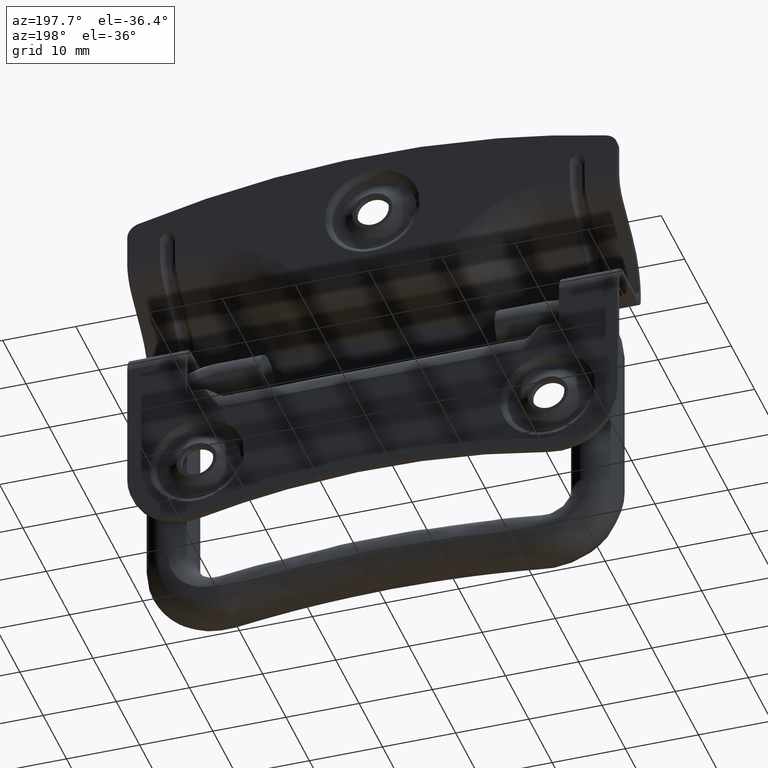
[diagram: clean part render]
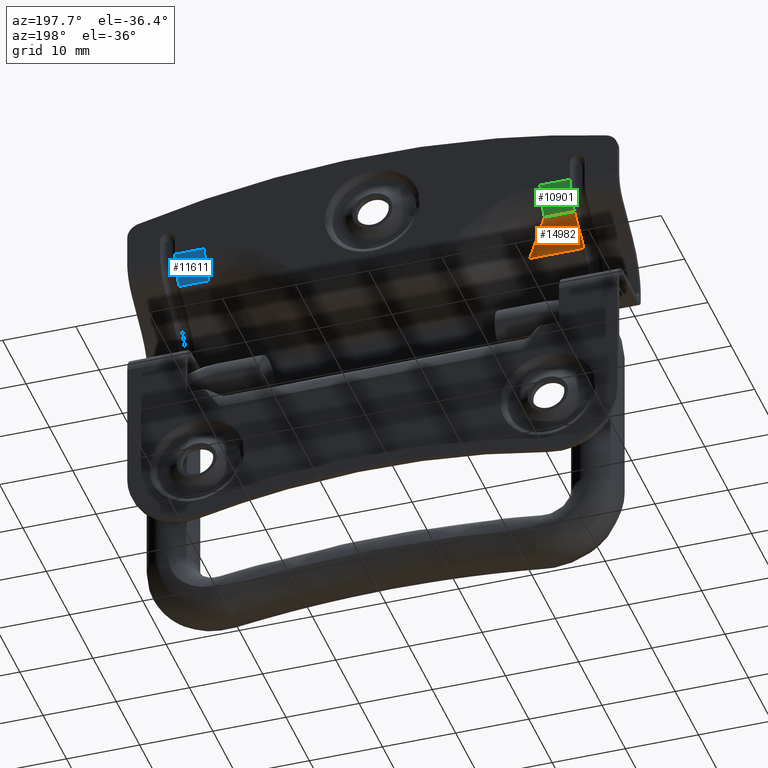
[diagram: same view with three faces highlighted in distinct colors, each labeled with its STEP entity id]
A machine part, auxiliary view with three faces highlighted in distinct colors.
Their STEP definitions:

[orange] entity #14982 — the highlighted face is a freeform B-spline surface patch.
#10843=CARTESIAN_POINT('',(-22.923475820353751,3.780000000000115,15.160000000000601));
#10844=VERTEX_POINT('',#10843);
#10858=CARTESIAN_POINT('',(-27.0,3.780000000000000,15.160000000000551));
#10859=VERTEX_POINT('',#10858);
#10860=CARTESIAN_POINT('',(-27.0,3.780000000000000,15.160000000000551));
#10861=CARTESIAN_POINT('',(-22.923475820353751,3.780000000000115,15.160000000000601));
#10862=QUASI_UNIFORM_CURVE('',1,(#10860,#10861),.UNSPECIFIED.,.F.,.U.);
#10863=EDGE_CURVE('',#10859,#10844,#10862,.T.);
#13907=CARTESIAN_POINT('',(-19.585318980685400,-0.299999770619768,12.100000172035459));
#13908=VERTEX_POINT('',#13907);
#14012=CARTESIAN_POINT('',(-22.923475820353751,3.780000000000115,15.160000000000601));
#14013=CARTESIAN_POINT('',(-19.585318980685400,-0.299999770619768,12.100000172035459));
#14014=QUASI_UNIFORM_CURVE('',1,(#14012,#14013),.UNSPECIFIED.,.F.,.U.);
#14015=EDGE_CURVE('',#10844,#13908,#14014,.T.);
#14821=CARTESIAN_POINT('',(-27.0,-0.299999770619768,12.100000172035459));
#14822=VERTEX_POINT('',#14821);
#14836=CARTESIAN_POINT('',(-19.585318980685400,-0.299999770619768,12.100000172035459));
#14837=CARTESIAN_POINT('',(-27.0,-0.299999770619768,12.100000172035459));
#14838=QUASI_UNIFORM_CURVE('',1,(#14836,#14837),.UNSPECIFIED.,.F.,.U.);
#14839=EDGE_CURVE('',#13908,#14822,#14838,.T.);
#14967=CARTESIAN_POINT('',(-27.370363276053229,3.983795889457883,15.312846917093941));
#14968=CARTESIAN_POINT('',(-27.370363276053229,-0.503795550643417,11.947153337017710));
#14969=CARTESIAN_POINT('',(-19.214956036094240,3.983795889457883,15.312846917093941));
#14970=CARTESIAN_POINT('',(-19.214956036094240,-0.503795550643417,11.947153337017710));
#14971=B_SPLINE_SURFACE_WITH_KNOTS('',1,1,((#14967,#14969),(#14968,#14970)),.UNSPECIFIED.,.F.,.F.,.U.,(2,2),(2,2),(0.0,5.609489300126778),(0.0,8.155407239958983),.UNSPECIFIED.);
#14972=CARTESIAN_POINT('',(-27.0,-0.299999770619768,12.100000172035459));
#14973=CARTESIAN_POINT('',(-27.0,3.780000000000000,15.160000000000551));
#14974=QUASI_UNIFORM_CURVE('',1,(#14972,#14973),.UNSPECIFIED.,.F.,.U.);
#14975=EDGE_CURVE('',#14822,#10859,#14974,.T.);
#14976=ORIENTED_EDGE('',*,*,#14975,.T.);
#14977=ORIENTED_EDGE('',*,*,#10863,.T.);
#14978=ORIENTED_EDGE('',*,*,#14015,.T.);
#14979=ORIENTED_EDGE('',*,*,#14839,.T.);
#14980=EDGE_LOOP('',(#14976,#14977,#14978,#14979));
#14981=FACE_OUTER_BOUND('',#14980,.T.);
#14982=ADVANCED_FACE('',(#14981),#14971,.F.);

[blue] entity #11611 — the highlighted face is a freeform B-spline surface patch.
#9080=CARTESIAN_POINT('',(27.0,5.579164642992629,17.929757857414600));
#9081=VERTEX_POINT('',#9080);
#9217=CARTESIAN_POINT('',(27.0,4.563692499863470,15.898813571156900));
#9218=VERTEX_POINT('',#9217);
#9232=CARTESIAN_POINT('',(27.0,4.563692499863474,15.898813571156900));
#9233=CARTESIAN_POINT('',(27.000000000000004,5.318630136986122,16.790684931506682));
#9234=CARTESIAN_POINT('',(27.0,5.579164642992629,17.929757857414600));
#9242=(BOUNDED_CURVE()B_SPLINE_CURVE(2,(#9232,#9233,#9234),.UNSPECIFIED.,.F.,.U.)CURVE()GEOMETRIC_REPRESENTATION_ITEM()QUASI_UNIFORM_CURVE()RATIONAL_B_SPLINE_CURVE((1.0,0.971624775937368,1.0))REPRESENTATION_ITEM(''));
#9243=EDGE_CURVE('',#9218,#9081,#9242,.T.);
#11506=CARTESIAN_POINT('',(22.923475820353499,5.699999999999901,19.000000000000352));
#11507=VERTEX_POINT('',#11506);
#11508=CARTESIAN_POINT('',(22.923475820353548,3.780000000000060,15.160000000000551));
#11509=VERTEX_POINT('',#11508);
#11510=CARTESIAN_POINT('',(22.923475820353499,5.699999999999901,19.000000000000352));
#11511=CARTESIAN_POINT('',(22.923475820353502,5.699999999999904,16.600000000000566));
#11512=CARTESIAN_POINT('',(22.923475820353548,3.780000000000060,15.160000000000551));
#11520=(BOUNDED_CURVE()B_SPLINE_CURVE(2,(#11510,#11511,#11512),.UNSPECIFIED.,.F.,.U.)CURVE()GEOMETRIC_REPRESENTATION_ITEM()QUASI_UNIFORM_CURVE()RATIONAL_B_SPLINE_CURVE((1.0,0.894427190999924,1.0))REPRESENTATION_ITEM(''));
#11521=EDGE_CURVE('',#11507,#11509,#11520,.T.);
#11553=CARTESIAN_POINT('',(22.821562715862338,5.699817230707925,19.041887370392640));
#11554=CARTESIAN_POINT('',(27.104460932103439,5.699817230707925,19.041887370392640));
#11555=CARTESIAN_POINT('',(22.821562715862335,5.722179155610697,16.479464581490959));
#11556=CARTESIAN_POINT('',(27.104460932103446,5.722179155610697,16.479464581490959));
#11557=CARTESIAN_POINT('',(22.821562715862338,3.605491937835364,15.035114960770777));
#11558=CARTESIAN_POINT('',(27.104460932103446,3.605491937835364,15.035114960770777));
#11566=(BOUNDED_SURFACE()B_SPLINE_SURFACE(1,2,((#11553,#11555,#11557),(#11554,#11556,#11558)),.UNSPECIFIED.,.F.,.F.,.U.)B_SPLINE_SURFACE_WITH_KNOTS((2,2),(3,3),(0.0,4.282898216241110),(0.0,4.804165045571807),.UNSPECIFIED.)GEOMETRIC_REPRESENTATION_ITEM()RATIONAL_B_SPLINE_SURFACE(((1.0,0.880605123680634,0.996476740914151),(1.0,0.880605123680634,0.996476740914151)))REPRESENTATION_ITEM('')SURFACE());
#11567=CARTESIAN_POINT('',(27.0,3.780000000000000,15.160000000000551));
#11568=VERTEX_POINT('',#11567);
#11569=CARTESIAN_POINT('',(27.0,3.780000000000012,15.160000000000529));
#11570=CARTESIAN_POINT('',(27.0,4.213554008428663,15.485165506322039));
#11571=CARTESIAN_POINT('',(27.0,4.563692499863474,15.898813571156900));
#11579=(BOUNDED_CURVE()B_SPLINE_CURVE(2,(#11569,#11570,#11571),.UNSPECIFIED.,.F.,.U.)CURVE()GEOMETRIC_REPRESENTATION_ITEM()QUASI_UNIFORM_CURVE()RATIONAL_B_SPLINE_CURVE((1.0,0.993686562073326,1.0))REPRESENTATION_ITEM(''));
#11580=EDGE_CURVE('',#11568,#9218,#11579,.T.);
#11581=ORIENTED_EDGE('',*,*,#11580,.F.);
#11582=CARTESIAN_POINT('',(22.923475820353548,3.780000000000060,15.160000000000551));
#11583=CARTESIAN_POINT('',(27.0,3.780000000000000,15.160000000000551));
#11584=QUASI_UNIFORM_CURVE('',1,(#11582,#11583),.UNSPECIFIED.,.F.,.U.);
#11585=EDGE_CURVE('',#11509,#11568,#11584,.T.);
#11586=ORIENTED_EDGE('',*,*,#11585,.F.);
#11587=ORIENTED_EDGE('',*,*,#11521,.F.);
#11588=CARTESIAN_POINT('',(27.0,5.699999999999901,19.000000000000451));
#11589=VERTEX_POINT('',#11588);
#11590=CARTESIAN_POINT('',(27.0,5.699999999999901,19.000000000000451));
#11591=CARTESIAN_POINT('',(22.923475820353499,5.699999999999901,19.000000000000352));
#11592=QUASI_UNIFORM_CURVE('',1,(#11590,#11591),.UNSPECIFIED.,.F.,.U.);
#11593=EDGE_CURVE('',#11589,#11507,#11592,.T.);
#11594=ORIENTED_EDGE('',*,*,#11593,.F.);
#11595=CARTESIAN_POINT('',(27.0,5.579164642992629,17.929757857414600));
#11596=CARTESIAN_POINT('',(27.0,5.699999999999904,18.458057489463972));
#11597=CARTESIAN_POINT('',(27.0,5.699999999999904,19.000000000000451));
#11605=(BOUNDED_CURVE()B_SPLINE_CURVE(2,(#11595,#11596,#11597),.UNSPECIFIED.,.F.,.U.)CURVE()GEOMETRIC_REPRESENTATION_ITEM()QUASI_UNIFORM_CURVE()RATIONAL_B_SPLINE_CURVE((1.0,0.993686562073311,1.0))REPRESENTATION_ITEM(''));
#11606=EDGE_CURVE('',#9081,#11589,#11605,.T.);
#11607=ORIENTED_EDGE('',*,*,#11606,.F.);
#11608=ORIENTED_EDGE('',*,*,#9243,.F.);
#11609=EDGE_LOOP('',(#11581,#11586,#11587,#11594,#11607,#11608));
#11610=FACE_OUTER_BOUND('',#11609,.T.);
#11611=ADVANCED_FACE('',(#11610),#11566,.T.);

[green] entity #10901 — the highlighted face is a freeform B-spline surface patch.
#9853=CARTESIAN_POINT('',(-27.0,4.563692499863470,15.898813571156900));
#9854=VERTEX_POINT('',#9853);
#10045=CARTESIAN_POINT('',(-27.0,5.579164642992629,17.929757857414600));
#10046=VERTEX_POINT('',#10045);
#10060=CARTESIAN_POINT('',(-27.0,5.579164642992629,17.929757857414600));
#10061=CARTESIAN_POINT('',(-27.0,5.318630136986123,16.790684931506682));
#10062=CARTESIAN_POINT('',(-27.0,4.563692499863474,15.898813571156900));
#10070=(BOUNDED_CURVE()B_SPLINE_CURVE(2,(#10060,#10061,#10062),.UNSPECIFIED.,.F.,.U.)CURVE()GEOMETRIC_REPRESENTATION_ITEM()QUASI_UNIFORM_CURVE()RATIONAL_B_SPLINE_CURVE((1.0,0.971624775937369,1.0))REPRESENTATION_ITEM(''));
#10071=EDGE_CURVE('',#10046,#9854,#10070,.T.);
#10827=CARTESIAN_POINT('',(-27.101913104491160,5.698355159882576,19.125649351878302));
#10828=CARTESIAN_POINT('',(-22.819014888250258,5.698355159882576,19.125649351878302));
#10829=CARTESIAN_POINT('',(-27.101913104491157,5.766841924626849,16.510245324057607));
#10830=CARTESIAN_POINT('',(-22.819014888250258,5.766841924626849,16.510245324057607));
#10831=CARTESIAN_POINT('',(-27.101913104491164,3.605873074112913,15.035375061019447));
#10832=CARTESIAN_POINT('',(-22.819014888250265,3.605873074112913,15.035375061019447));
#10840=(BOUNDED_SURFACE()B_SPLINE_SURFACE(1,2,((#10827,#10829,#10831),(#10828,#10830,#10832)),.UNSPECIFIED.,.F.,.F.,.U.)B_SPLINE_SURFACE_WITH_KNOTS((2,2),(3,3),(0.0,4.282898216240901),(0.0,4.892792111931137),.UNSPECIFIED.)GEOMETRIC_REPRESENTATION_ITEM()RATIONAL_B_SPLINE_SURFACE(((1.0,0.876452781399771,0.996387450991061),(1.0,0.876452781399771,0.996387450991061)))REPRESENTATION_ITEM('')SURFACE());
#10841=CARTESIAN_POINT('',(-22.923475820353701,5.699999999999901,19.000000000000501));
#10842=VERTEX_POINT('',#10841);
#10843=CARTESIAN_POINT('',(-22.923475820353751,3.780000000000115,15.160000000000601));
#10844=VERTEX_POINT('',#10843);
#10845=CARTESIAN_POINT('',(-22.923475820353701,5.699999999999904,19.000000000000501));
#10846=CARTESIAN_POINT('',(-22.923475820353705,5.699999999999903,16.600000000000637));
#10847=CARTESIAN_POINT('',(-22.923475820353701,3.780000000000088,15.160000000000640));
#10855=(BOUNDED_CURVE()B_SPLINE_CURVE(2,(#10845,#10846,#10847),.UNSPECIFIED.,.F.,.U.)CURVE()GEOMETRIC_REPRESENTATION_ITEM()QUASI_UNIFORM_CURVE()RATIONAL_B_SPLINE_CURVE((1.0,0.894427190999927,1.0))REPRESENTATION_ITEM(''));
#10856=EDGE_CURVE('',#10842,#10844,#10855,.T.);
#10857=ORIENTED_EDGE('',*,*,#10856,.T.);
#10858=CARTESIAN_POINT('',(-27.0,3.780000000000000,15.160000000000551));
#10859=VERTEX_POINT('',#10858);
#10860=CARTESIAN_POINT('',(-27.0,3.780000000000000,15.160000000000551));
#10861=CARTESIAN_POINT('',(-22.923475820353751,3.780000000000115,15.160000000000601));
#10862=QUASI_UNIFORM_CURVE('',1,(#10860,#10861),.UNSPECIFIED.,.F.,.U.);
#10863=EDGE_CURVE('',#10859,#10844,#10862,.T.);
#10864=ORIENTED_EDGE('',*,*,#10863,.F.);
#10865=CARTESIAN_POINT('',(-27.0,4.563692499863474,15.898813571156900));
#10866=CARTESIAN_POINT('',(-27.000000000000004,4.213554008428663,15.485165506322041));
#10867=CARTESIAN_POINT('',(-27.0,3.780000000000013,15.160000000000529));
#10875=(BOUNDED_CURVE()B_SPLINE_CURVE(2,(#10865,#10866,#10867),.UNSPECIFIED.,.F.,.U.)CURVE()GEOMETRIC_REPRESENTATION_ITEM()QUASI_UNIFORM_CURVE()RATIONAL_B_SPLINE_CURVE((1.0,0.993686562073326,1.0))REPRESENTATION_ITEM(''));
#10876=EDGE_CURVE('',#9854,#10859,#10875,.T.);
#10877=ORIENTED_EDGE('',*,*,#10876,.F.);
#10878=ORIENTED_EDGE('',*,*,#10071,.F.);
#10879=CARTESIAN_POINT('',(-27.0,5.699999999999901,19.000000000000451));
#10880=VERTEX_POINT('',#10879);
#10881=CARTESIAN_POINT('',(-27.0,5.699999999999904,19.000000000000451));
#10882=CARTESIAN_POINT('',(-27.0,5.699999999999904,18.458057489463972));
#10883=CARTESIAN_POINT('',(-27.0,5.579164642992629,17.929757857414600));
#10891=(BOUNDED_CURVE()B_SPLINE_CURVE(2,(#10881,#10882,#10883),.UNSPECIFIED.,.F.,.U.)CURVE()GEOMETRIC_REPRESENTATION_ITEM()QUASI_UNIFORM_CURVE()RATIONAL_B_SPLINE_CURVE((1.0,0.993686562073311,1.0))REPRESENTATION_ITEM(''));
#10892=EDGE_CURVE('',#10880,#10046,#10891,.T.);
#10893=ORIENTED_EDGE('',*,*,#10892,.F.);
#10894=CARTESIAN_POINT('',(-22.923475820353701,5.699999999999901,19.000000000000501));
#10895=CARTESIAN_POINT('',(-27.0,5.699999999999901,19.000000000000451));
#10896=QUASI_UNIFORM_CURVE('',1,(#10894,#10895),.UNSPECIFIED.,.F.,.U.);
#10897=EDGE_CURVE('',#10842,#10880,#10896,.T.);
#10898=ORIENTED_EDGE('',*,*,#10897,.F.);
#10899=EDGE_LOOP('',(#10857,#10864,#10877,#10878,#10893,#10898));
#10900=FACE_OUTER_BOUND('',#10899,.T.);
#10901=ADVANCED_FACE('',(#10900),#10840,.T.);